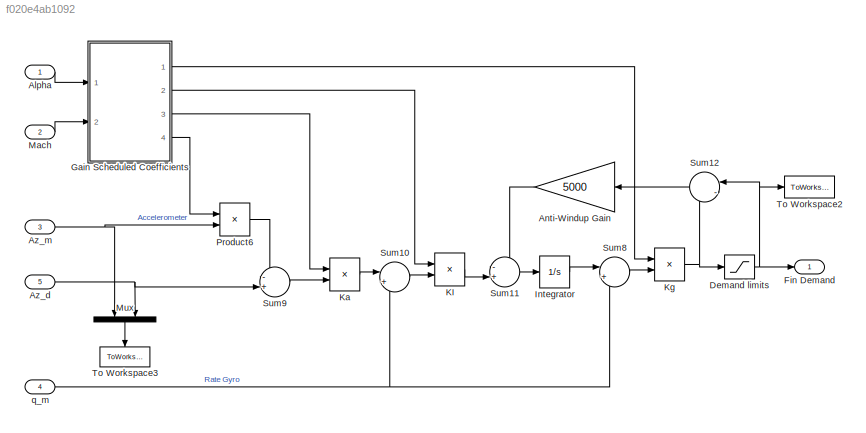
MODEL slx_f020e4ab1092
KIND model
CONFIG AbsTol = 1e-6
CONFIG EnableMultiTasking = off
CONFIG FixedStep = auto
CONFIG MaxStep = auto
CONFIG MinStep = auto
CONFIG PreLoadFcn = % aeroblk_init_HL20\naero_guid_dat\n
CONFIG RelTol = 1e-3
CONFIG SampleTimeConstraint = Unconstrained
CONFIG Solver = ode45
CONFIG SolverName = ode45
CONFIG StartTime = 0.0
CONFIG StopFcn = aero_guid_plot
CONFIG StopTime = 5
BLOCK [Inport] Alpha
  IconDisplay = Port number
  OutDataTypeStr = double
  PortDimensions = 1
  SampleTime = 0
  SamplingMode = Sample based
  SignalType = real
BLOCK [Gain] Anti-Windup Gain
  Gain = 5000
BLOCK [Inport] Az_d
  IconDisplay = Port number
  OutDataTypeStr = double
  Port = 5
  PortDimensions = 1
  SampleTime = 0
  SamplingMode = Sample based
  SignalType = real
BLOCK [Inport] Az_m
  IconDisplay = Port number
  OutDataTypeStr = double
  Port = 3
  PortDimensions = 1
  SampleTime = 0
  SamplingMode = Sample based
  SignalType = real
BLOCK [Saturate] Demand limits 
  InputPortMap = u0
  LowerLimit = fin_min
  Ports = [1, 1]
  UpperLimit = fin_max
BLOCK [Outport] Fin Demand
  IconDisplay = Port number
  InitialOutput = 0
  OutDataTypeStr = double
  PortDimensions = 1
  SampleTime = 0
  SamplingMode = Sample based
  SignalType = real
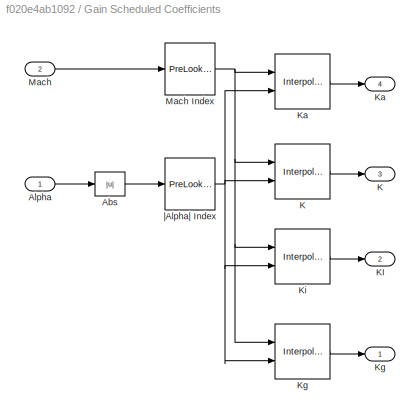
BLOCK [SubSystem] Gain Scheduled Coefficients
  Ports = [2, 4]
  RequestExecContextInheritance = off
BLOCK [Abs] Gain Scheduled Coefficients/Abs
BLOCK [Inport] Gain Scheduled Coefficients/Alpha
  IconDisplay = Port number
BLOCK [Reference] Gain Scheduled Coefficients/K  REF=simulink_need_slupdate/Interpolation (n-D)
using PreLookup
  Ports = [2, 1]
  SourceBlock = simulink_need_slupdate/Interpolation (n-D)\nusing PreLookup
  SourceProductBaseCode = SL
  SourceProductName = Simulink
  SourceType = LookupNDInterpIdx
BLOCK [Outport] Gain Scheduled Coefficients/K 
  IconDisplay = Port number
  InitialOutput = 0
  Port = 3
BLOCK [Outport] Gain Scheduled Coefficients/KI 
  IconDisplay = Port number
  InitialOutput = 0
  Port = 2
BLOCK [Reference] Gain Scheduled Coefficients/Ka  REF=simulink_need_slupdate/Interpolation (n-D)
using PreLookup
  Ports = [2, 1]
  SourceBlock = simulink_need_slupdate/Interpolation (n-D)\nusing PreLookup
  SourceProductBaseCode = SL
  SourceProductName = Simulink
  SourceType = LookupNDInterpIdx
BLOCK [Outport] Gain Scheduled Coefficients/Ka 
  IconDisplay = Port number
  InitialOutput = 0
  Port = 4
BLOCK [Reference] Gain Scheduled Coefficients/Kg  REF=simulink_need_slupdate/Interpolation (n-D)
using PreLookup
  Ports = [2, 1]
  SourceBlock = simulink_need_slupdate/Interpolation (n-D)\nusing PreLookup
  SourceProductBaseCode = SL
  SourceProductName = Simulink
  SourceType = LookupNDInterpIdx
BLOCK [Outport] Gain Scheduled Coefficients/Kg 
  IconDisplay = Port number
  InitialOutput = 0
BLOCK [Reference] Gain Scheduled Coefficients/Ki  REF=simulink_need_slupdate/Interpolation (n-D)
using PreLookup
  Ports = [2, 1]
  SourceBlock = simulink_need_slupdate/Interpolation (n-D)\nusing PreLookup
  SourceProductBaseCode = SL
  SourceProductName = Simulink
  SourceType = LookupNDInterpIdx
BLOCK [Inport] Gain Scheduled Coefficients/Mach
  IconDisplay = Port number
  Port = 2
BLOCK [Reference] Gain Scheduled Coefficients/Mach Index  REF=simulink_need_slupdate/PreLookup
Index Search
  Ports = [1, 1]
  SourceBlock = simulink_need_slupdate/PreLookup\nIndex Search
  SourceProductBaseCode = SL
  SourceProductName = Simulink
  SourceType = LookupIdxSearch
BLOCK [Reference] Gain Scheduled Coefficients/|Alpha| Index  REF=simulink_need_slupdate/PreLookup
Index Search
  Ports = [1, 1]
  SourceBlock = simulink_need_slupdate/PreLookup\nIndex Search
  SourceProductBaseCode = SL
  SourceProductName = Simulink
  SourceType = LookupIdxSearch
BLOCK [Integrator] Integrator
  Ports = [1, 1]
BLOCK [Product] KI
  Ports = [2, 1]
  RndMeth = Floor
BLOCK [Product] Ka
  Ports = [2, 1]
  RndMeth = Floor
BLOCK [Product] Kg
  Ports = [2, 1]
  RndMeth = Floor
BLOCK [Inport] Mach
  IconDisplay = Port number
  OutDataTypeStr = double
  Port = 2
  PortDimensions = 1
  SampleTime = 0
  SamplingMode = Sample based
  SignalType = real
BLOCK [Mux] Mux
  DisplayOption = bar
  Inputs = 2
  Ports = [2, 1]
BLOCK [Product] Product6
  Ports = [2, 1]
  RndMeth = Floor
BLOCK [Sum] Sum10
  IconShape = round
  Inputs = |++
  Ports = [2, 1]
BLOCK [Sum] Sum11
  IconShape = round
  Inputs = -+|
  Ports = [2, 1]
BLOCK [Sum] Sum12
  IconShape = round
  Inputs = |-+
  Ports = [2, 1]
BLOCK [Sum] Sum8
  IconShape = round
  Inputs = |++
  Ports = [2, 1]
BLOCK [Sum] Sum9
  IconShape = round
  Inputs = -+|
  Ports = [2, 1]
BLOCK [ToWorkspace] To Workspace2
  MaxDataPoints = inf
  Ports = [1]
  SampleTime = -1
  SaveFormat = Structure With Time
  VariableName = Fin_dem
BLOCK [ToWorkspace] To Workspace3
  MaxDataPoints = inf
  Ports = [1]
  SampleTime = -1
  SaveFormat = Structure With Time
  VariableName = Latax
BLOCK [Inport] q_m
  IconDisplay = Port number
  OutDataTypeStr = double
  Port = 4
  PortDimensions = 1
  SampleTime = 0
  SamplingMode = Sample based
  SignalType = real
LINE Alpha:1 -> Gain Scheduled Coefficients:1
LINE Anti-Windup Gain:1 -> Sum11:1
NET Az_d:1 -> Mux:2, Sum9:2
NET Az_m:1 -> Mux:1, Product6:2
NET Demand limits :1 -> Fin Demand:1, Sum12:1, To Workspace2:1
LINE Gain Scheduled Coefficients/Abs:1 -> Gain Scheduled Coefficients/|Alpha| Index:1
LINE Gain Scheduled Coefficients/Alpha:1 -> Gain Scheduled Coefficients/Abs:1
LINE Gain Scheduled Coefficients/K:1 -> Gain Scheduled Coefficients/K :1
LINE Gain Scheduled Coefficients/Ka:1 -> Gain Scheduled Coefficients/Ka :1
LINE Gain Scheduled Coefficients/Kg:1 -> Gain Scheduled Coefficients/Kg :1
LINE Gain Scheduled Coefficients/Ki:1 -> Gain Scheduled Coefficients/KI :1
NET Gain Scheduled Coefficients/Mach Index:1 -> Gain Scheduled Coefficients/K:1, Gain Scheduled Coefficients/Ka:1, Gain Scheduled Coefficients/Kg:1, Gain Scheduled Coefficients/Ki:1
LINE Gain Scheduled Coefficients/Mach:1 -> Gain Scheduled Coefficients/Mach Index:1
NET Gain Scheduled Coefficients/|Alpha| Index:1 -> Gain Scheduled Coefficients/K:2, Gain Scheduled Coefficients/Ka:2, Gain Scheduled Coefficients/Kg:2, Gain Scheduled Coefficients/Ki:2
LINE Gain Scheduled Coefficients:1 -> Kg:1
LINE Gain Scheduled Coefficients:2 -> KI:1
LINE Gain Scheduled Coefficients:3 -> Ka:1
LINE Gain Scheduled Coefficients:4 -> Product6:1
LINE Integrator:1 -> Sum8:1
LINE KI:1 -> Sum11:2
LINE Ka:1 -> Sum10:1
NET Kg:1 -> Demand limits :1, Sum12:2
LINE Mach:1 -> Gain Scheduled Coefficients:2
LINE Mux:1 -> To Workspace3:1
LINE Product6:1 -> Sum9:1
LINE Sum10:1 -> KI:2
LINE Sum11:1 -> Integrator:1
LINE Sum12:1 -> Anti-Windup Gain:1
LINE Sum8:1 -> Kg:2
LINE Sum9:1 -> Ka:2
NET q_m:1 -> Sum10:2, Sum8:2
note: NET lines group one-source signal fan-out (src -> all destinations, sorted); 1:1 wires keep LINE
